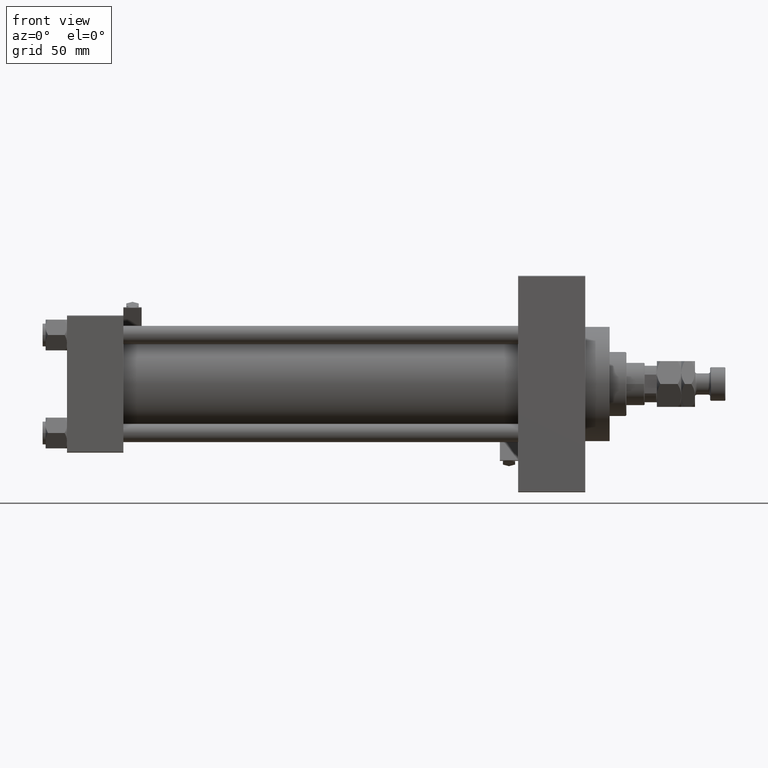
[diagram: clean part render]
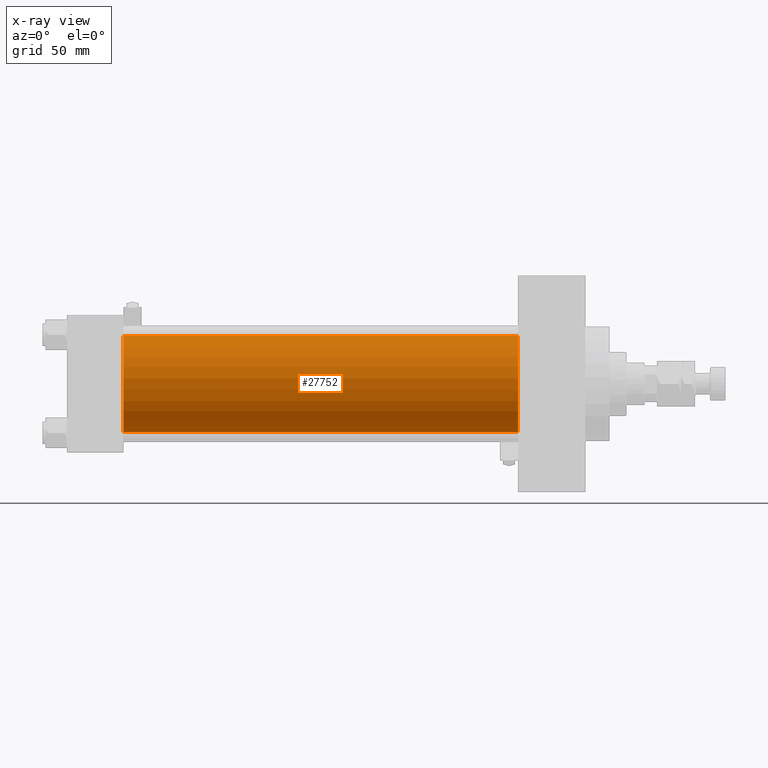
[diagram: x-ray — body ghosted, one internal face saturated and labeled with its STEP entity id]
A machine part, front view, then the same camera in x-ray: the body is ghosted and one INTERNAL B-rep face — a face not visible from any outside direction — is saturated and labeled: STEP entity #27752.
In plain terms, the highlighted cylindrical surface (partial cylindrical patch) has radius 31.5 mm, axis along (-1, -0, -0).
Its self-contained STEP definition (entity closure, byte-faithful):
#1117 = DIRECTION ( 'NONE',  ( -1.000000000000000000, -0.000000000000000000, -0.000000000000000000 ) ) ;
#2981 = AXIS2_PLACEMENT_3D ( 'NONE', #40954, #28589, #44637 ) ;
#3846 = EDGE_CURVE ( 'NONE', #8353, #44343, #38298, .T. ) ;
#3970 = ORIENTED_EDGE ( 'NONE', *, *, #4474, .T. ) ;
#4474 = EDGE_CURVE ( 'NONE', #49534, #7718, #39105, .T. ) ;
#4811 = CARTESIAN_POINT ( 'NONE',  ( 296.0000000000000000, -2.602085213965210642E-15, 31.50000000000000000 ) ) ;
#5346 = CARTESIAN_POINT ( 'NONE',  ( 37.00000000000000000, 1.255552203348951850E-15, -31.50000000000000000 ) ) ;
#5588 = CYLINDRICAL_SURFACE ( 'NONE', #26121, 31.50000000000000000 ) ;
#7718 = VERTEX_POINT ( 'NONE', #34747 ) ;
#8140 = VECTOR ( 'NONE', #25121, 1000.000000000000000 ) ;
#8353 = VERTEX_POINT ( 'NONE', #35544 ) ;
#8746 = FACE_OUTER_BOUND ( 'NONE', #44894, .T. ) ;
#9274 = DIRECTION ( 'NONE',  ( -1.000000000000000000, -0.000000000000000000, -0.000000000000000000 ) ) ;
#9527 = DIRECTION ( 'NONE',  ( 0.000000000000000000, 0.000000000000000000, 1.000000000000000000 ) ) ;
#13072 = AXIS2_PLACEMENT_3D ( 'NONE', #32684, #25569, #13736 ) ;
#13736 = DIRECTION ( 'NONE',  ( 0.000000000000000000, 0.000000000000000000, -1.000000000000000000 ) ) ;
#22081 = ORIENTED_EDGE ( 'NONE', *, *, #3846, .F. ) ;
#22919 = VECTOR ( 'NONE', #9274, 1000.000000000000000 ) ;
#24605 = LINE ( 'NONE', #36435, #8140 ) ;
#24804 = CARTESIAN_POINT ( 'NONE',  ( 296.0000000000000000, -2.602085213965210642E-15, 0.000000000000000000 ) ) ;
#25121 = DIRECTION ( 'NONE',  ( -1.000000000000000000, -0.000000000000000000, -0.000000000000000000 ) ) ;
#25569 = DIRECTION ( 'NONE',  ( 1.000000000000000000, 0.000000000000000000, 0.000000000000000000 ) ) ;
#26121 = AXIS2_PLACEMENT_3D ( 'NONE', #24804, #1117, #9527 ) ;
#27752 = ADVANCED_FACE ( 'NONE', ( #8746 ), #5588, .F. ) ;
#28589 = DIRECTION ( 'NONE',  ( 1.000000000000000000, 0.000000000000000000, 0.000000000000000000 ) ) ;
#31799 = EDGE_CURVE ( 'NONE', #49534, #8353, #40334, .T. ) ;
#32684 = CARTESIAN_POINT ( 'NONE',  ( 296.0000000000000000, -2.602085213965210642E-15, 0.000000000000000000 ) ) ;
#34747 = CARTESIAN_POINT ( 'NONE',  ( 296.0000000000000000, 1.255552203348951850E-15, -31.50000000000000000 ) ) ;
#34796 = CARTESIAN_POINT ( 'NONE',  ( 296.0000000000000000, -2.602085213965210642E-15, 31.50000000000000000 ) ) ;
#35544 = CARTESIAN_POINT ( 'NONE',  ( 37.00000000000000000, -2.602085213965210642E-15, 31.50000000000000000 ) ) ;
#36417 = ORIENTED_EDGE ( 'NONE', *, *, #48241, .T. ) ;
#36435 = CARTESIAN_POINT ( 'NONE',  ( 296.0000000000000000, 1.255552203348951850E-15, -31.50000000000000000 ) ) ;
#38298 = CIRCLE ( 'NONE', #2981, 31.50000000000000000 ) ;
#39105 = CIRCLE ( 'NONE', #13072, 31.50000000000000000 ) ;
#40334 = LINE ( 'NONE', #4811, #22919 ) ;
#40954 = CARTESIAN_POINT ( 'NONE',  ( 37.00000000000000000, -2.602085213965210642E-15, 0.000000000000000000 ) ) ;
#44343 = VERTEX_POINT ( 'NONE', #5346 ) ;
#44637 = DIRECTION ( 'NONE',  ( 0.000000000000000000, 0.000000000000000000, -1.000000000000000000 ) ) ;
#44894 = EDGE_LOOP ( 'NONE', ( #3970, #36417, #22081, #51867 ) ) ;
#48241 = EDGE_CURVE ( 'NONE', #7718, #44343, #24605, .T. ) ;
#49534 = VERTEX_POINT ( 'NONE', #34796 ) ;
#51867 = ORIENTED_EDGE ( 'NONE', *, *, #31799, .F. ) ;